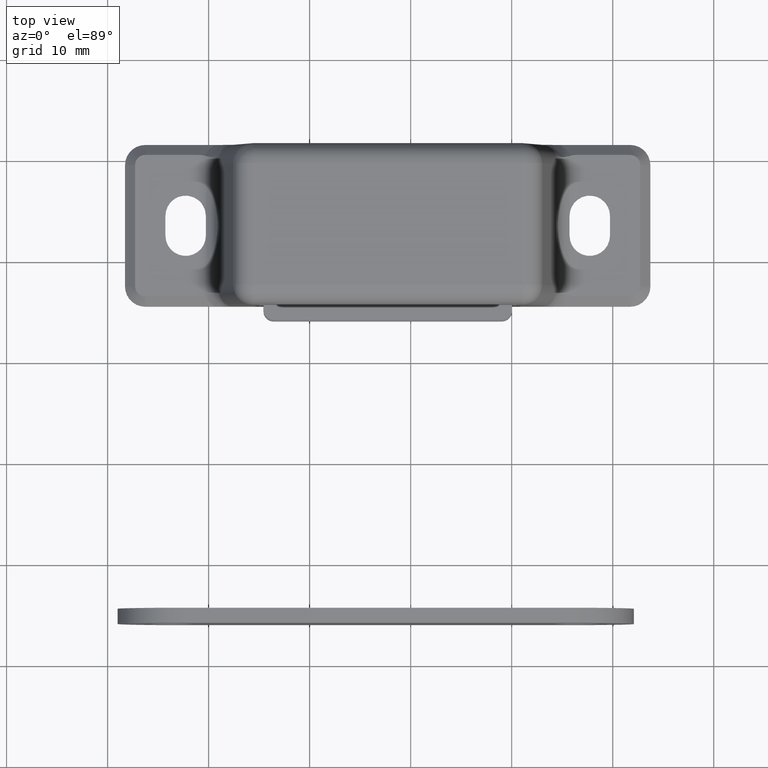
[diagram: clean part render]
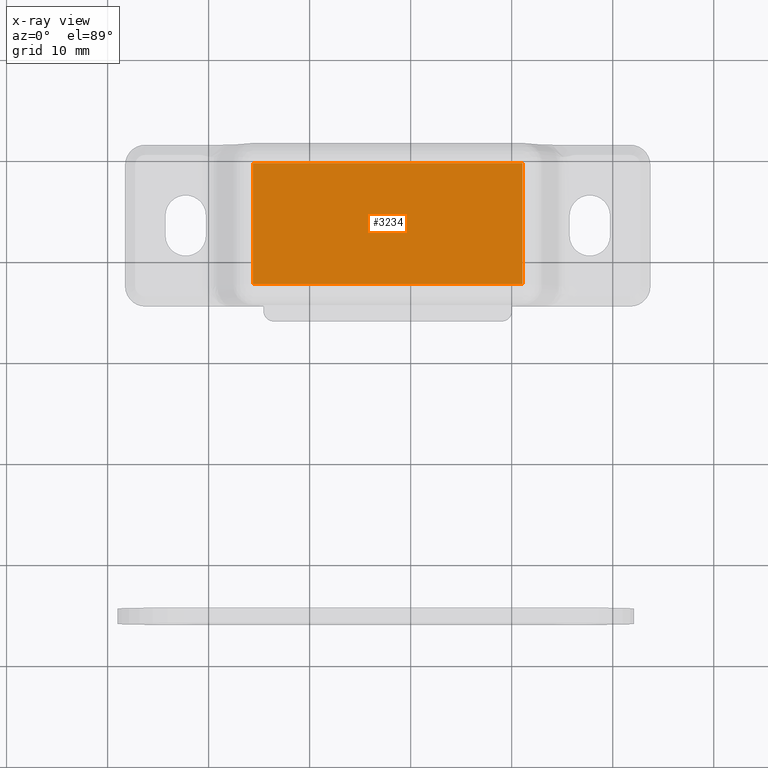
[diagram: x-ray — body ghosted, one internal face saturated and labeled with its STEP entity id]
A machine part, top view, then the same camera in x-ray: the body is ghosted and one INTERNAL B-rep face — a face not visible from any outside direction — is saturated and labeled: STEP entity #3234.
In plain terms, the highlighted planar face has unit normal (0, 0, 1).
Its self-contained STEP definition (entity closure, byte-faithful):
#149=PLANE('',#3447);
#251=FACE_OUTER_BOUND('',#444,.T.);
#444=EDGE_LOOP('',(#2252,#2253,#2254,#2255));
#715=LINE('',#4824,#1011);
#717=LINE('',#4834,#1013);
#718=LINE('',#4837,#1014);
#719=LINE('',#4838,#1015);
#1011=VECTOR('',#3831,12.);
#1013=VECTOR('',#3843,26.7026544567298);
#1014=VECTOR('',#3846,12.);
#1015=VECTOR('',#3847,26.7026544567298);
#1422=VERTEX_POINT('',#4813);
#1426=VERTEX_POINT('',#4822);
#1429=VERTEX_POINT('',#4832);
#1430=VERTEX_POINT('',#4836);
#1747=EDGE_CURVE('',#1422,#1426,#715,.T.);
#1752=EDGE_CURVE('',#1426,#1429,#717,.T.);
#1753=EDGE_CURVE('',#1429,#1430,#718,.T.);
#1754=EDGE_CURVE('',#1430,#1422,#719,.T.);
#2252=ORIENTED_EDGE('',*,*,#1747,.T.);
#2253=ORIENTED_EDGE('',*,*,#1752,.T.);
#2254=ORIENTED_EDGE('',*,*,#1753,.T.);
#2255=ORIENTED_EDGE('',*,*,#1754,.T.);
#3234=ADVANCED_FACE('',(#251),#149,.F.);
#3447=AXIS2_PLACEMENT_3D('',#4835,#3844,#3845);
#3831=DIRECTION('',(0.,1.,0.));
#3843=DIRECTION('',(1.,0.,0.));
#3844=DIRECTION('center_axis',(0.,0.,1.));
#3845=DIRECTION('ref_axis',(1.,0.,0.));
#3846=DIRECTION('',(0.,-1.,0.));
#3847=DIRECTION('',(-1.,0.,0.));
#4813=CARTESIAN_POINT('',(-13.3513272283649,-6.,12.3));
#4822=CARTESIAN_POINT('',(-13.3513272283649,6.,12.3));
#4824=CARTESIAN_POINT('',(-13.3513272283649,0.,12.3));
#4832=CARTESIAN_POINT('',(13.3513272283649,6.,12.3));
#4834=CARTESIAN_POINT('',(-7.49999999999995,6.,12.3));
#4835=CARTESIAN_POINT('Origin',(-14.9999999999999,0.,12.3));
#4836=CARTESIAN_POINT('',(13.3513272283649,-6.,12.3));
#4837=CARTESIAN_POINT('',(13.3513272283649,0.,12.3));
#4838=CARTESIAN_POINT('',(-7.49999999999995,-6.,12.3));